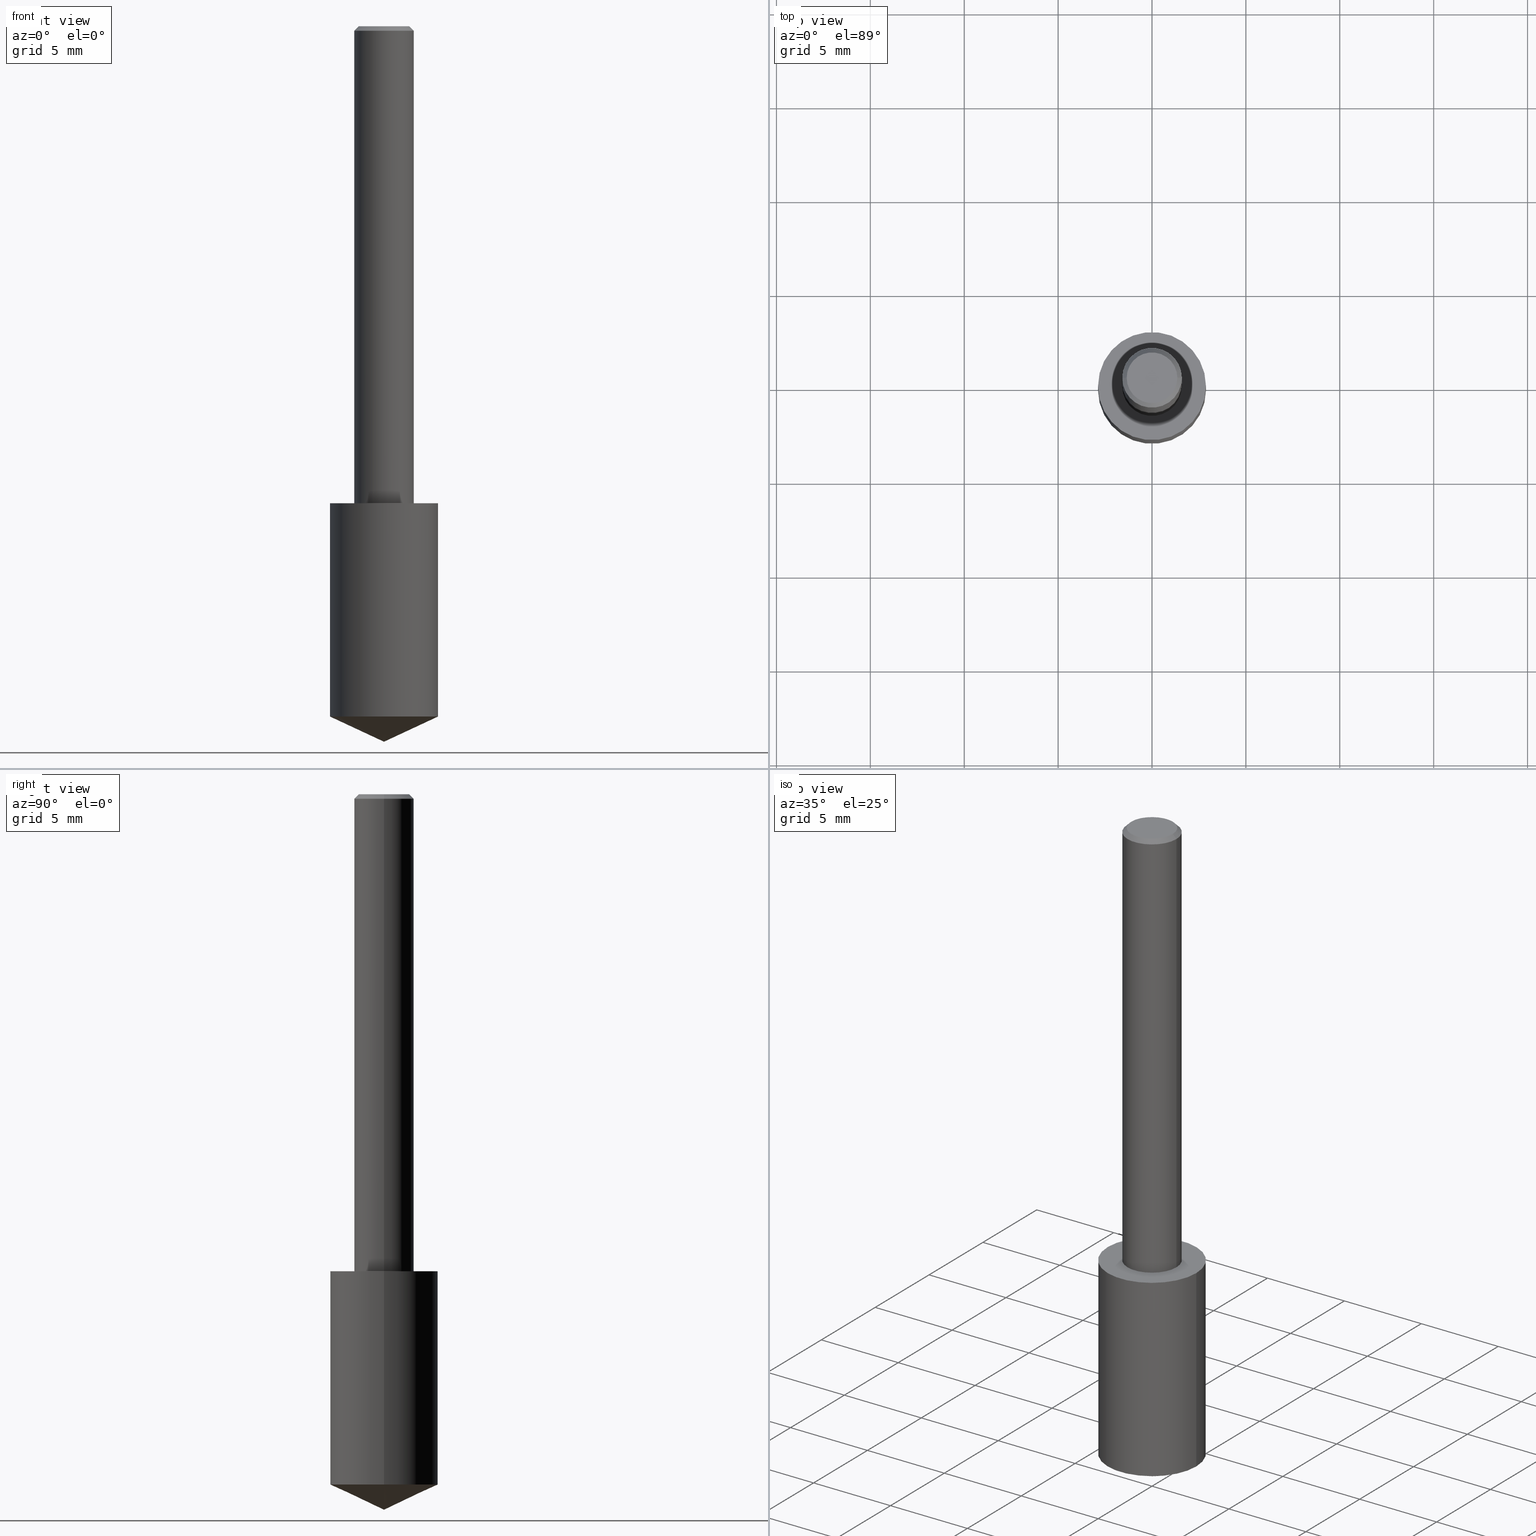
[diagram: canonical four-view strip — front | top / right | iso, engineering-drawing reading convention]
A machine part, canonical four-view strip (front | top / right | iso — engineering-drawing reading convention). The complete STEP part file that produces these views, byte-faithful:
ISO-10303-21;
HEADER;
FILE_DESCRIPTION (( 'STEP AP203' ),
    '1' );
FILE_NAME ('06155.STEP',
    '2024-04-30T18:31:46',
    ( '' ),
    ( '' ),
    'SwSTEP 2.0',
    'SolidWorks 2023',
    '' );
FILE_SCHEMA (( 'CONFIG_CONTROL_DESIGN' ));
ENDSEC;

DATA;
#1 = ORIENTED_EDGE ( 'NONE', *, *, #174, .F. ) ;
#2 = CARTESIAN_POINT ( 'NONE',  ( -0.06250000000000000000, 4.037025298037369984E-16, -0.009375000000000060368 ) ) ;
#3 = DIRECTION ( 'NONE',  ( -2.445468806185136597E-29, 3.491481338843145583E-15, 1.000000000000000000 ) ) ;
#4 = SECURITY_CLASSIFICATION ( '', '', #235 ) ;
#5 = ADVANCED_BREP_SHAPE_REPRESENTATION ( '06155', ( #157, #276, #193 ), #63 ) ;
#6 = DIRECTION ( 'NONE',  ( -2.445468806185136877E-29, 3.491481338843145188E-15, 1.000000000000000000 ) ) ;
#7 = CARTESIAN_POINT ( 'NONE',  ( -9.261009624683002666E-28, 1.322226732217803884E-13, 37.87007874015748143 ) ) ;
#8 = DIRECTION ( 'NONE',  ( -2.445468806185136597E-29, 3.491481338843145583E-15, 1.000000000000000000 ) ) ;
#9 = AXIS2_PLACEMENT_3D ( 'NONE', #190, #183, #287 ) ;
#10 = EDGE_CURVE ( 'NONE', #187, #335, #184, .T. ) ;
#11 = DIRECTION ( 'NONE',  ( -2.445468806185136877E-29, 3.491481338843145188E-15, 1.000000000000000000 ) ) ;
#12 = CARTESIAN_POINT ( 'NONE',  ( 0.000000000000000000, 0.000000000000000000, 0.000000000000000000 ) ) ;
#13 = UNCERTAINTY_MEASURE_WITH_UNIT (LENGTH_MEASURE( 1.000000000000000082E-05 ), #202, 'distance_accuracy_value', 'NONE');
#14 = CC_DESIGN_SECURITY_CLASSIFICATION ( #4, ( #169 ) ) ;
#15 = AXIS2_PLACEMENT_3D ( 'NONE', #143, #297, #191 ) ;
#16 = DIRECTION ( 'NONE',  ( 1.000000000000000000, -6.982962677686264344E-15, 0.000000000000000000 ) ) ;
#17 = CARTESIAN_POINT ( 'NONE',  ( 3.288065651629910335E-29, -2.284834698532075829E-15, -1.000000000000000222 ) ) ;
#18 = PERSON_AND_ORGANIZATION_ROLE ( 'classification_officer' ) ;
#19 = EDGE_LOOP ( 'NONE', ( #211, #1, #123, #128 ) ) ;
#20 = AXIS2_PLACEMENT_3D ( 'NONE', #141, #171, #278 ) ;
#21 = DATE_AND_TIME ( #259, #288 ) ;
#22 = ORIENTED_EDGE ( 'NONE', *, *, #86, .T. ) ;
#23 = ORIENTED_EDGE ( 'NONE', *, *, #70, .F. ) ;
#24 = APPROVAL_DATE_TIME ( #100, #25 ) ;
#25 = APPROVAL ( #75, 'UNSPECIFIED' ) ;
#26 = EDGE_LOOP ( 'NONE', ( #97, #284 ) ) ;
#27 = APPROVAL_ROLE ( '' ) ;
#28 = AXIS2_PLACEMENT_3D ( 'NONE', #216, #3, #319 ) ;
#29 = EDGE_LOOP ( 'NONE', ( #101, #215, #22, #242 ) ) ;
#30 = DIRECTION ( 'NONE',  ( -2.445468806185136597E-29, 3.491481338843145583E-15, 1.000000000000000000 ) ) ;
#31 = CARTESIAN_POINT ( 'NONE',  ( 3.668203209277704895E-29, -5.237222008264718177E-15, -1.500000000000000222 ) ) ;
#32 = CC_DESIGN_PERSON_AND_ORGANIZATION_ASSIGNMENT ( #331, #155, ( #34 ) ) ;
#33 = LINE ( 'NONE', #31, #329 ) ;
#34 = PRODUCT_DEFINITION ( 'UNKNOWN', '', #169, #228 ) ;
#35 = DIRECTION ( 'NONE',  ( 0.9063077870366507138, -4.853149677051390623E-15, 0.4226182617406978315 ) ) ;
#36 = CARTESIAN_POINT ( 'NONE',  ( 3.668203209277704895E-29, -5.237222008264718177E-15, -1.500000000000000222 ) ) ;
#37 = CARTESIAN_POINT ( 'NONE',  ( 2.445468806185137438E-29, -3.491481338843146371E-15, -1.000000000000000222 ) ) ;
#38 = CIRCLE ( 'NONE', #125, 0.1131999999999999812 ) ;
#39 = CONICAL_SURFACE ( 'NONE', #256, 84.42940631927434936, 1.134464013796316006 ) ;
#40 = CARTESIAN_POINT ( 'NONE',  ( 0.06250000000000006939, -4.364351673553921624E-16, 3.047610484872463374E-30 ) ) ;
#41 = CONICAL_SURFACE ( 'NONE', #316, 0.06250000000000000000, 0.7853981633974452814 ) ;
#42 = PERSON_AND_ORGANIZATION ( #177, #241 ) ;
#43 = VERTEX_POINT ( 'NONE', #310 ) ;
#44 = EDGE_CURVE ( 'NONE', #71, #133, #232, .T. ) ;
#45 = VERTEX_POINT ( 'NONE', #238 ) ;
#46 = AXIS2_PLACEMENT_3D ( 'NONE', #55, #317, #197 ) ;
#47 = DATE_TIME_ROLE ( 'creation_date' ) ;
#48 = CARTESIAN_POINT ( 'NONE',  ( 2.445468806185136877E-29, -3.491481338843145977E-15, -1.000000000000000222 ) ) ;
#49 = DATE_AND_TIME ( #180, #262 ) ;
#50 = ORIENTED_EDGE ( 'NONE', *, *, #44, .F. ) ;
#51 = ADVANCED_FACE ( 'NONE', ( #291 ), #74, .T. ) ;
#52 = ORIENTED_EDGE ( 'NONE', *, *, #10, .F. ) ;
#53 = CIRCLE ( 'NONE', #20, 0.05312499999999999861 ) ;
#54 = LINE ( 'NONE', #78, #135 ) ;
#55 = CARTESIAN_POINT ( 'NONE',  ( 3.539116627083612931E-29, -5.052920580380713708E-15, -1.447213973096854511 ) ) ;
#56 = CC_DESIGN_PERSON_AND_ORGANIZATION_ASSIGNMENT ( #42, #283, ( #169 ) ) ;
#57 = DIRECTION ( 'NONE',  ( -2.445468806185136597E-29, 3.491481338843145583E-15, 1.000000000000000000 ) ) ;
#58 = DIRECTION ( 'NONE',  ( -1.000000000000000000, 6.982962677686266711E-15, 0.000000000000000000 ) ) ;
#59 = EDGE_CURVE ( 'NONE', #43, #307, #33, .T. ) ;
#60 = FACE_OUTER_BOUND ( 'NONE', #26, .T. ) ;
#61 = CARTESIAN_POINT ( 'NONE',  ( 2.292627005798580623E-31, -3.273263755165470184E-17, -0.009375000000000060368 ) ) ;
#62 = ORIENTED_EDGE ( 'NONE', *, *, #10, .T. ) ;
#63 =( GEOMETRIC_REPRESENTATION_CONTEXT ( 3 ) GLOBAL_UNCERTAINTY_ASSIGNED_CONTEXT ( ( #13 ) ) GLOBAL_UNIT_ASSIGNED_CONTEXT ( ( #202, #152, #65 ) ) REPRESENTATION_CONTEXT ( 'NONE', 'WORKASPACE' ) );
#64 = CYLINDRICAL_SURFACE ( 'NONE', #126, 0.06250000000000006939 ) ;
#65 =( NAMED_UNIT ( * ) SI_UNIT ( $, .STERADIAN. ) SOLID_ANGLE_UNIT ( ) );
#66 = DIRECTION ( 'NONE',  ( -2.445468806185136877E-29, 3.491481338843145188E-15, 1.000000000000000000 ) ) ;
#67 = CIRCLE ( 'NONE', #251, 0.06250000000000000000 ) ;
#68 = EDGE_CURVE ( 'NONE', #133, #71, #38, .T. ) ;
#69 = APPLICATION_PROTOCOL_DEFINITION ( 'international standard', 'config_control_design', 1994, #131 ) ;
#70 = EDGE_CURVE ( 'NONE', #187, #209, #292, .T. ) ;
#71 = VERTEX_POINT ( 'NONE', #220 ) ;
#72 = ORIENTED_EDGE ( 'NONE', *, *, #195, .T. ) ;
#73 = CIRCLE ( 'NONE', #303, 0.05312499999999999861 ) ;
#74 = CYLINDRICAL_SURFACE ( 'NONE', #192, 0.1131999999999999812 ) ;
#75 = APPROVAL_STATUS ( 'not_yet_approved' ) ;
#76 = EDGE_LOOP ( 'NONE', ( #260, #156, #154 ) ) ;
#77 = ORIENTED_EDGE ( 'NONE', *, *, #244, .F. ) ;
#78 = CARTESIAN_POINT ( 'NONE',  ( 0.1131999999999999812, -4.281952713957231192E-15, -1.000000000000000222 ) ) ;
#79 = DIRECTION ( 'NONE',  ( 1.000000000000000000, -6.982962677686266711E-15, 0.000000000000000000 ) ) ;
#80 = FACE_OUTER_BOUND ( 'NONE', #332, .T. ) ;
#81 = CC_DESIGN_DATE_AND_TIME_ASSIGNMENT ( #96, #308, ( #4 ) ) ;
#82 = EDGE_CURVE ( 'NONE', #45, #209, #167, .T. ) ;
#83 = DIRECTION ( 'NONE',  ( -2.445468806185136877E-29, 3.491481338843145188E-15, 1.000000000000000000 ) ) ;
#84 = CIRCLE ( 'NONE', #234, 0.1131999999999999812 ) ;
#85 = FACE_OUTER_BOUND ( 'NONE', #286, .T. ) ;
#86 = EDGE_CURVE ( 'NONE', #95, #71, #54, .T. ) ;
#87 = DIRECTION ( 'NONE',  ( -2.445468806185136597E-29, 3.491481338843145583E-15, 1.000000000000000000 ) ) ;
#88 = LINE ( 'NONE', #113, #275 ) ;
#89 = APPROVAL_PERSON_ORGANIZATION ( #289, #114, #27 ) ;
#90 = CARTESIAN_POINT ( 'NONE',  ( 0.06250000000000000000, -4.615137624123753937E-16, -0.009375000000000060368 ) ) ;
#91 = CARTESIAN_POINT ( 'NONE',  ( -7.487088864773345706E-50, 1.068957861474247695E-35, 3.061616997868395197E-21 ) ) ;
#92 = APPROVAL_DATE_TIME ( #49, #114 ) ;
#93 = AXIS2_PLACEMENT_3D ( 'NONE', #17, #298, #229 ) ;
#94 = COORDINATED_UNIVERSAL_TIME_OFFSET ( 5, 0, .BEHIND. ) ;
#95 = VERTEX_POINT ( 'NONE', #109 ) ;
#96 = DATE_AND_TIME ( #231, #325 ) ;
#97 = ORIENTED_EDGE ( 'NONE', *, *, #174, .T. ) ;
#98 = MECHANICAL_CONTEXT ( 'NONE', #196, 'mechanical' ) ;
#99 = VERTEX_POINT ( 'NONE', #111 ) ;
#100 = DATE_AND_TIME ( #127, #118 ) ;
#101 = ORIENTED_EDGE ( 'NONE', *, *, #323, .F. ) ;
#102 = ORIENTED_EDGE ( 'NONE', *, *, #272, .F. ) ;
#103 = CC_DESIGN_DATE_AND_TIME_ASSIGNMENT ( #153, #47, ( #34 ) ) ;
#104 = EDGE_CURVE ( 'NONE', #327, #209, #67, .T. ) ;
#105 = DIRECTION ( 'NONE',  ( 1.000000000000000000, -6.982962677686266711E-15, 0.000000000000000000 ) ) ;
#106 = CLOSED_SHELL ( 'NONE', ( #221, #188, #198, #51, #254 ) ) ;
#107 = LOCAL_TIME ( 14, 31, 46.00000000000000000, #205 ) ;
#108 = CARTESIAN_POINT ( 'NONE',  ( 3.539116627083612931E-29, -5.052920580380713708E-15, -1.447213973096854511 ) ) ;
#109 = CARTESIAN_POINT ( 'NONE',  ( 0.1132000000000000089, -5.843391955494798923E-15, -1.447213973096854511 ) ) ;
#110 = DIRECTION ( 'NONE',  ( 1.000000000000000000, -6.982962677686269077E-15, 0.000000000000000000 ) ) ;
#111 = CARTESIAN_POINT ( 'NONE',  ( 0.05312499999999999861, -4.129888592719939842E-16, 3.061617000609493422E-21 ) ) ;
#112 = CIRCLE ( 'NONE', #46, 0.1131999999999999812 ) ;
#113 = CARTESIAN_POINT ( 'NONE',  ( -0.1131999999999999812, -2.687146961962713193E-15, -1.000000000000000222 ) ) ;
#114 = APPROVAL ( #213, 'UNSPECIFIED' ) ;
#115 = CARTESIAN_POINT ( 'NONE',  ( 2.445468806185137438E-29, -3.491481338843146371E-15, -1.000000000000000222 ) ) ;
#116 = DIRECTION ( 'NONE',  ( 2.445468806185136597E-29, -3.491481338843145583E-15, -1.000000000000000000 ) ) ;
#117 = VECTOR ( 'NONE', #250, 39.37007874015748143 ) ;
#118 = LOCAL_TIME ( 14, 31, 46.00000000000000000, #305 ) ;
#119 = FACE_OUTER_BOUND ( 'NONE', #339, .T. ) ;
#120 = EDGE_CURVE ( 'NONE', #335, #187, #222, .T. ) ;
#121 = PLANE ( 'NONE',  #206 ) ;
#122 = COORDINATED_UNIVERSAL_TIME_OFFSET ( 5, 0, .BEHIND. ) ;
#123 = ORIENTED_EDGE ( 'NONE', *, *, #82, .T. ) ;
#124 = PRODUCT ( '06155', '06155', '', ( #98 ) ) ;
#125 = AXIS2_PLACEMENT_3D ( 'NONE', #243, #57, #168 ) ;
#126 = AXIS2_PLACEMENT_3D ( 'NONE', #326, #175, #255 ) ;
#127 = CALENDAR_DATE ( 2024, 30, 4 ) ;
#128 = ORIENTED_EDGE ( 'NONE', *, *, #142, .T. ) ;
#129 = PERSON_AND_ORGANIZATION ( #177, #241 ) ;
#130 = DIRECTION ( 'NONE',  ( -2.445468806185136597E-29, 3.491481338843145583E-15, 1.000000000000000000 ) ) ;
#131 = APPLICATION_CONTEXT ( 'configuration controlled 3d designs of mechanical parts and assemblies' ) ;
#132 = PERSON_AND_ORGANIZATION_ROLE ( 'creator' ) ;
#133 = VERTEX_POINT ( 'NONE', #296 ) ;
#134 = CLOSED_SHELL ( 'NONE', ( #145, #249, #212, #163, #258, #150 ) ) ;
#135 = VECTOR ( 'NONE', #83, 39.37007874015748143 ) ;
#136 = EDGE_LOOP ( 'NONE', ( #23, #62, #225, #299 ) ) ;
#137 = FACE_OUTER_BOUND ( 'NONE', #76, .T. ) ;
#138 = CARTESIAN_POINT ( 'NONE',  ( 2.292627005798580623E-31, -3.273263755165470184E-17, -0.009375000000000060368 ) ) ;
#139 = VECTOR ( 'NONE', #178, 39.37007874015748143 ) ;
#140 = CARTESIAN_POINT ( 'NONE',  ( 2.292627005798580623E-31, -3.273263755165470184E-17, -0.009375000000000060368 ) ) ;
#141 = CARTESIAN_POINT ( 'NONE',  ( -7.487088864773345706E-50, 1.068957861474247695E-35, 3.061616997868395197E-21 ) ) ;
#142 = EDGE_CURVE ( 'NONE', #209, #327, #338, .T. ) ;
#143 = CARTESIAN_POINT ( 'NONE',  ( -3.743544432386672853E-50, 5.344789307371238476E-36, 1.530808498934197599E-21 ) ) ;
#144 = FACE_OUTER_BOUND ( 'NONE', #19, .T. ) ;
#145 = ADVANCED_FACE ( 'NONE', ( #80 ), #279, .T. ) ;
#146 = CARTESIAN_POINT ( 'NONE',  ( -0.06250000000000000000, -1.318017778347336672E-15, -0.009375000000000060368 ) ) ;
#147 = FACE_OUTER_BOUND ( 'NONE', #236, .T. ) ;
#148 = APPROVAL ( #160, 'UNSPECIFIED' ) ;
#149 = CC_DESIGN_PERSON_AND_ORGANIZATION_ASSIGNMENT ( #210, #18, ( #4 ) ) ;
#150 = ADVANCED_FACE ( 'NONE', ( #60 ), #166, .F. ) ;
#151 = APPLICATION_PROTOCOL_DEFINITION ( 'international standard', 'config_control_design', 1994, #196 ) ;
#152 =( NAMED_UNIT ( * ) PLANE_ANGLE_UNIT ( ) SI_UNIT ( $, .RADIAN. ) );
#153 = DATE_AND_TIME ( #304, #107 ) ;
#154 = ORIENTED_EDGE ( 'NONE', *, *, #195, .F. ) ;
#155 = PERSON_AND_ORGANIZATION_ROLE ( 'creator' ) ;
#156 = ORIENTED_EDGE ( 'NONE', *, *, #59, .T. ) ;
#157 = MANIFOLD_SOLID_BREP ( 'Body-Move/Copy2[1]', #106 ) ;
#158 = CC_DESIGN_APPROVAL ( #148, ( #169 ) ) ;
#159 = EDGE_LOOP ( 'NONE', ( #72, #334, #50, #314 ) ) ;
#160 = APPROVAL_STATUS ( 'not_yet_approved' ) ;
#161 = ORIENTED_EDGE ( 'NONE', *, *, #173, .F. ) ;
#162 = APPROVAL_DATE_TIME ( #21, #148 ) ;
#163 = ADVANCED_FACE ( 'NONE', ( #245 ), #270, .T. ) ;
#164 = ORIENTED_EDGE ( 'NONE', *, *, #70, .T. ) ;
#165 = AXIS2_PLACEMENT_3D ( 'NONE', #321, #201, #105 ) ;
#166 = PLANE ( 'NONE',  #15 ) ;
#167 = LINE ( 'NONE', #2, #117 ) ;
#168 = DIRECTION ( 'NONE',  ( 1.000000000000000000, -6.982962677686269077E-15, 0.000000000000000000 ) ) ;
#169 = PRODUCT_DEFINITION_FORMATION_WITH_SPECIFIED_SOURCE ( 'ANY', '', #124, .NOT_KNOWN. ) ;
#170 = LINE ( 'NONE', #36, #268 ) ;
#171 = DIRECTION ( 'NONE',  ( -2.445468806185136597E-29, 3.491481338843145583E-15, 1.000000000000000000 ) ) ;
#172 = LINE ( 'NONE', #90, #139 ) ;
#173 = EDGE_CURVE ( 'NONE', #307, #95, #84, .T. ) ;
#174 = EDGE_CURVE ( 'NONE', #45, #99, #53, .T. ) ;
#175 = DIRECTION ( 'NONE',  ( -2.445468806185136597E-29, 3.491481338843145583E-15, 1.000000000000000000 ) ) ;
#176 = CC_DESIGN_APPROVAL ( #114, ( #34 ) ) ;
#177 = PERSON ( 'UNSPECIFIED', 'UNSPECIFIED', 'UNSPECIFIED', ('UNSPECIFIED'), ('UNSPECIFIED'), ('UNSPECIFIED') ) ;
#178 = DIRECTION ( 'NONE',  ( 0.7071067811865453523, -7.319954787623248157E-15, -0.7071067811865496822 ) ) ;
#179 = AXIS2_PLACEMENT_3D ( 'NONE', #219, #318, #273 ) ;
#180 = CALENDAR_DATE ( 2024, 30, 4 ) ;
#181 = ORIENTED_EDGE ( 'NONE', *, *, #44, .T. ) ;
#182 = EDGE_CURVE ( 'NONE', #43, #95, #170, .T. ) ;
#183 = DIRECTION ( 'NONE',  ( -2.445468806185136597E-29, 3.491481338843145583E-15, 1.000000000000000000 ) ) ;
#184 = CIRCLE ( 'NONE', #9, 0.06250000000000012490 ) ;
#185 = APPROVAL_PERSON_ORGANIZATION ( #337, #25, #207 ) ;
#186 = APPROVAL_ROLE ( '' ) ;
#187 = VERTEX_POINT ( 'NONE', #218 ) ;
#188 = ADVANCED_FACE ( 'NONE', ( #137 ), #330, .T. ) ;
#189 = SHAPE_DEFINITION_REPRESENTATION ( #237, #5 ) ;
#190 = CARTESIAN_POINT ( 'NONE',  ( 2.445468806185137438E-29, -3.491481338843146371E-15, -1.000000000000000222 ) ) ;
#191 = DIRECTION ( 'NONE',  ( -1.000000000000000000, 6.982962677686265922E-15, -4.876176775795935793E-29 ) ) ;
#192 = AXIS2_PLACEMENT_3D ( 'NONE', #277, #8, #247 ) ;
#193 = AXIS2_PLACEMENT_3D ( 'NONE', #12, #263, #333 ) ;
#194 = DIRECTION ( 'NONE',  ( -2.445468806185136597E-29, 3.491481338843145583E-15, 1.000000000000000000 ) ) ;
#195 = EDGE_CURVE ( 'NONE', #95, #307, #112, .T. ) ;
#196 = APPLICATION_CONTEXT ( 'configuration controlled 3d designs of mechanical parts and assemblies' ) ;
#197 = DIRECTION ( 'NONE',  ( 1.000000000000000000, -6.982962677686269077E-15, 0.000000000000000000 ) ) ;
#198 = ADVANCED_FACE ( 'NONE', ( #248 ), #39, .T. ) ;
#199 = DIRECTION ( 'NONE',  ( 2.445468806185136597E-29, -3.491481338843145583E-15, -1.000000000000000000 ) ) ;
#200 = AXIS2_PLACEMENT_3D ( 'NONE', #115, #87, #16 ) ;
#201 = DIRECTION ( 'NONE',  ( -2.445468806185136597E-29, 3.491481338843145583E-15, 1.000000000000000000 ) ) ;
#202 =( CONVERSION_BASED_UNIT ( 'INCH', #322 ) LENGTH_UNIT ( ) NAMED_UNIT ( #203 ) );
#203 = DIMENSIONAL_EXPONENTS ( 1.000000000000000000, 0.000000000000000000, 0.000000000000000000, 0.000000000000000000, 0.000000000000000000, 0.000000000000000000, 0.000000000000000000 ) ;
#204 = DIRECTION ( 'NONE',  ( -1.000000000000000000, 6.982962677686266711E-15, 0.000000000000000000 ) ) ;
#205 = COORDINATED_UNIVERSAL_TIME_OFFSET ( 5, 0, .BEHIND. ) ;
#206 = AXIS2_PLACEMENT_3D ( 'NONE', #37, #282, #324 ) ;
#207 = APPROVAL_ROLE ( '' ) ;
#208 = ORIENTED_EDGE ( 'NONE', *, *, #104, .T. ) ;
#209 = VERTEX_POINT ( 'NONE', #146 ) ;
#210 = PERSON_AND_ORGANIZATION ( #177, #241 ) ;
#211 = ORIENTED_EDGE ( 'NONE', *, *, #271, .F. ) ;
#212 = ADVANCED_FACE ( 'NONE', ( #147 ), #121, .F. ) ;
#213 = APPROVAL_STATUS ( 'not_yet_approved' ) ;
#214 = ORIENTED_EDGE ( 'NONE', *, *, #120, .F. ) ;
#215 = ORIENTED_EDGE ( 'NONE', *, *, #173, .T. ) ;
#216 = CARTESIAN_POINT ( 'NONE',  ( 0.000000000000000000, 0.000000000000000000, 0.000000000000000000 ) ) ;
#217 = VECTOR ( 'NONE', #11, 39.37007874015748143 ) ;
#218 = CARTESIAN_POINT ( 'NONE',  ( -0.06250000000000012490, -1.318017778347335489E-15, -1.000000000000000222 ) ) ;
#219 = CARTESIAN_POINT ( 'NONE',  ( 2.445468806185137438E-29, -3.491481338843146371E-15, -1.000000000000000222 ) ) ;
#220 = CARTESIAN_POINT ( 'NONE',  ( 0.1131999999999999812, -4.281952713957231192E-15, -1.000000000000000222 ) ) ;
#221 = ADVANCED_FACE ( 'NONE', ( #226 ), #328, .T. ) ;
#222 = CIRCLE ( 'NONE', #179, 0.06250000000000012490 ) ;
#223 = DIRECTION ( 'NONE',  ( -2.445468806185136597E-29, 3.491481338843145583E-15, 1.000000000000000000 ) ) ;
#224 = CARTESIAN_POINT ( 'NONE',  ( 0.06250000000000000000, -4.691678049070463404E-16, -0.009375000000000060368 ) ) ;
#225 = ORIENTED_EDGE ( 'NONE', *, *, #272, .T. ) ;
#226 = FACE_OUTER_BOUND ( 'NONE', #159, .T. ) ;
#227 = AXIS2_PLACEMENT_3D ( 'NONE', #315, #194, #294 ) ;
#228 = DESIGN_CONTEXT ( 'detailed design', #131, 'design' ) ;
#229 = DIRECTION ( 'NONE',  ( -1.000000000000000000, 6.982962677686265922E-15, -4.876176775795935793E-29 ) ) ;
#230 = DIRECTION ( 'NONE',  ( -2.445468806185136597E-29, 3.491481338843145583E-15, 1.000000000000000000 ) ) ;
#231 = CALENDAR_DATE ( 2024, 30, 4 ) ;
#232 = CIRCLE ( 'NONE', #293, 0.1131999999999999812 ) ;
#233 = ORIENTED_EDGE ( 'NONE', *, *, #68, .T. ) ;
#234 = AXIS2_PLACEMENT_3D ( 'NONE', #108, #30, #110 ) ;
#235 = SECURITY_CLASSIFICATION_LEVEL ( 'unclassified' ) ;
#236 = EDGE_LOOP ( 'NONE', ( #214, #52 ) ) ;
#237 = PRODUCT_DEFINITION_SHAPE ( 'NONE', 'NONE',  #34 ) ;
#238 = CARTESIAN_POINT ( 'NONE',  ( -0.05312499999999999861, 3.873362110279099094E-16, 3.061616995216862494E-21 ) ) ;
#239 = PERSON_AND_ORGANIZATION ( #177, #241 ) ;
#240 = ORIENTED_EDGE ( 'NONE', *, *, #82, .F. ) ;
#241 = ORGANIZATION ( 'UNSPECIFIED', 'UNSPECIFIED', '' ) ;
#242 = ORIENTED_EDGE ( 'NONE', *, *, #68, .F. ) ;
#243 = CARTESIAN_POINT ( 'NONE',  ( 2.445468806185136877E-29, -3.491481338843145977E-15, -1.000000000000000222 ) ) ;
#244 = EDGE_CURVE ( 'NONE', #99, #45, #73, .T. ) ;
#245 = FACE_OUTER_BOUND ( 'NONE', #136, .T. ) ;
#246 = APPROVAL_PERSON_ORGANIZATION ( #239, #148, #186 ) ;
#247 = DIRECTION ( 'NONE',  ( 1.000000000000000000, -6.982962677686264344E-15, 0.000000000000000000 ) ) ;
#248 = FACE_OUTER_BOUND ( 'NONE', #306, .T. ) ;
#249 = ADVANCED_FACE ( 'NONE', ( #85 ), #64, .T. ) ;
#250 = DIRECTION ( 'NONE',  ( -0.7071067811865453523, 2.468850131082234184E-15, -0.7071067811865496822 ) ) ;
#251 = AXIS2_PLACEMENT_3D ( 'NONE', #140, #223, #79 ) ;
#252 = PLANE ( 'NONE',  #93 ) ;
#253 = DIRECTION ( 'NONE',  ( 1.000000000000000000, -6.982962677686266711E-15, 4.876176628004948512E-29 ) ) ;
#254 = ADVANCED_FACE ( 'NONE', ( #119 ), #252, .F. ) ;
#255 = DIRECTION ( 'NONE',  ( 1.000000000000000000, -6.982962677686266711E-15, 4.876176775795935793E-29 ) ) ;
#256 = AXIS2_PLACEMENT_3D ( 'NONE', #7, #257, #300 ) ;
#257 = DIRECTION ( 'NONE',  ( -2.445468806185136597E-29, 3.491481338843145583E-15, 1.000000000000000000 ) ) ;
#258 = ADVANCED_FACE ( 'NONE', ( #144 ), #41, .T. ) ;
#259 = CALENDAR_DATE ( 2024, 30, 4 ) ;
#260 = ORIENTED_EDGE ( 'NONE', *, *, #182, .F. ) ;
#261 = ORIENTED_EDGE ( 'NONE', *, *, #104, .F. ) ;
#262 = LOCAL_TIME ( 14, 31, 46.00000000000000000, #312 ) ;
#263 = DIRECTION ( 'NONE',  ( 0.000000000000000000, 0.000000000000000000, 1.000000000000000000 ) ) ;
#264 = DIRECTION ( 'NONE',  ( 1.000000000000000000, -6.982962677686269077E-15, 0.000000000000000000 ) ) ;
#265 = PERSON_AND_ORGANIZATION ( #177, #241 ) ;
#266 = ORIENTED_EDGE ( 'NONE', *, *, #182, .T. ) ;
#267 = ORIENTED_EDGE ( 'NONE', *, *, #120, .T. ) ;
#268 = VECTOR ( 'NONE', #35, 39.37007874015748143 ) ;
#269 = CC_DESIGN_PERSON_AND_ORGANIZATION_ASSIGNMENT ( #265, #132, ( #169 ) ) ;
#270 = CYLINDRICAL_SURFACE ( 'NONE', #28, 0.06250000000000006939 ) ;
#271 = EDGE_CURVE ( 'NONE', #99, #327, #172, .T. ) ;
#272 = EDGE_CURVE ( 'NONE', #335, #327, #302, .T. ) ;
#273 = DIRECTION ( 'NONE',  ( 1.000000000000000000, -6.982962677686264344E-15, 0.000000000000000000 ) ) ;
#274 = CARTESIAN_POINT ( 'NONE',  ( -0.06250000000000006939, 4.440892098500631092E-16, -3.074334431409319267E-30 ) ) ;
#275 = VECTOR ( 'NONE', #66, 39.37007874015748143 ) ;
#276 = MANIFOLD_SOLID_BREP ( 'Body-Move/Copy2[2]', #134 ) ;
#277 = CARTESIAN_POINT ( 'NONE',  ( 2.445468806185137438E-29, -3.491481338843146371E-15, -1.000000000000000222 ) ) ;
#278 = DIRECTION ( 'NONE',  ( 1.000000000000000000, -6.982962677686266711E-15, 4.876176628004948512E-29 ) ) ;
#279 = CONICAL_SURFACE ( 'NONE', #320, 0.06250000000000000000, 0.7853981633974452814 ) ;
#280 = CARTESIAN_POINT ( 'NONE',  ( 0.06250000000000012490, -3.927916506198539224E-15, -1.000000000000000222 ) ) ;
#281 = CARTESIAN_POINT ( 'NONE',  ( -0.1132000000000000089, -4.248586203500279741E-15, -1.447213973096854511 ) ) ;
#282 = DIRECTION ( 'NONE',  ( -2.438088387897960049E-29, 3.491481338843145188E-15, 1.000000000000000000 ) ) ;
#283 = PERSON_AND_ORGANIZATION_ROLE ( 'design_supplier' ) ;
#284 = ORIENTED_EDGE ( 'NONE', *, *, #244, .T. ) ;
#285 = PERSON_AND_ORGANIZATION_ROLE ( 'design_owner' ) ;
#286 = EDGE_LOOP ( 'NONE', ( #267, #164, #261, #102 ) ) ;
#287 = DIRECTION ( 'NONE',  ( 1.000000000000000000, -6.982962677686264344E-15, 0.000000000000000000 ) ) ;
#288 = LOCAL_TIME ( 14, 31, 46.00000000000000000, #94 ) ;
#289 = PERSON_AND_ORGANIZATION ( #177, #241 ) ;
#290 = ORIENTED_EDGE ( 'NONE', *, *, #271, .T. ) ;
#291 = FACE_OUTER_BOUND ( 'NONE', #29, .T. ) ;
#292 = LINE ( 'NONE', #274, #309 ) ;
#293 = AXIS2_PLACEMENT_3D ( 'NONE', #48, #130, #264 ) ;
#294 = DIRECTION ( 'NONE',  ( 1.000000000000000000, -6.982962677686266711E-15, 0.000000000000000000 ) ) ;
#295 = DIRECTION ( 'NONE',  ( -0.9063077870366507138, 7.915267918739014631E-15, 0.4226182617406978315 ) ) ;
#296 = CARTESIAN_POINT ( 'NONE',  ( -0.1131999999999999812, -3.467866582731496664E-15, -1.000000000000000222 ) ) ;
#297 = DIRECTION ( 'NONE',  ( 2.438088387897960049E-29, -3.491481338843145188E-15, -1.000000000000000000 ) ) ;
#298 = DIRECTION ( 'NONE',  ( 2.438088387897960049E-29, -3.491481338843145188E-15, -1.000000000000000000 ) ) ;
#299 = ORIENTED_EDGE ( 'NONE', *, *, #142, .F. ) ;
#300 = DIRECTION ( 'NONE',  ( 1.000000000000000000, -6.982962677686266711E-15, 0.000000000000000000 ) ) ;
#301 =( LENGTH_UNIT ( ) NAMED_UNIT ( * ) SI_UNIT ( $, .METRE. ) );
#302 = LINE ( 'NONE', #40, #217 ) ;
#303 = AXIS2_PLACEMENT_3D ( 'NONE', #91, #230, #253 ) ;
#304 = CALENDAR_DATE ( 2024, 30, 4 ) ;
#305 = COORDINATED_UNIVERSAL_TIME_OFFSET ( 5, 0, .BEHIND. ) ;
#306 = EDGE_LOOP ( 'NONE', ( #313, #266, #161 ) ) ;
#307 = VERTEX_POINT ( 'NONE', #281 ) ;
#308 = DATE_TIME_ROLE ( 'classification_date' ) ;
#309 = VECTOR ( 'NONE', #6, 39.37007874015748143 ) ;
#310 = CARTESIAN_POINT ( 'NONE',  ( 3.668203209277704895E-29, -5.237222008264718177E-15, -1.500000000000000222 ) ) ;
#311 = CC_DESIGN_APPROVAL ( #25, ( #4 ) ) ;
#312 = COORDINATED_UNIVERSAL_TIME_OFFSET ( 5, 0, .BEHIND. ) ;
#313 = ORIENTED_EDGE ( 'NONE', *, *, #59, .F. ) ;
#314 = ORIENTED_EDGE ( 'NONE', *, *, #86, .F. ) ;
#315 = CARTESIAN_POINT ( 'NONE',  ( -9.261009624683002666E-28, 1.322226732217803884E-13, 37.87007874015748143 ) ) ;
#316 = AXIS2_PLACEMENT_3D ( 'NONE', #61, #116, #204 ) ;
#317 = DIRECTION ( 'NONE',  ( -2.445468806185136597E-29, 3.491481338843145583E-15, 1.000000000000000000 ) ) ;
#318 = DIRECTION ( 'NONE',  ( -2.445468806185136597E-29, 3.491481338843145583E-15, 1.000000000000000000 ) ) ;
#319 = DIRECTION ( 'NONE',  ( 1.000000000000000000, -6.982962677686266711E-15, 4.876176775795935793E-29 ) ) ;
#320 = AXIS2_PLACEMENT_3D ( 'NONE', #138, #199, #58 ) ;
#321 = CARTESIAN_POINT ( 'NONE',  ( 2.292627005798580623E-31, -3.273263755165470184E-17, -0.009375000000000060368 ) ) ;
#322 = LENGTH_MEASURE_WITH_UNIT ( LENGTH_MEASURE( 0.02539999999999999897 ), #301 );
#323 = EDGE_CURVE ( 'NONE', #307, #133, #88, .T. ) ;
#324 = DIRECTION ( 'NONE',  ( 1.000000000000000000, -6.982962677686265922E-15, 4.876176775795935793E-29 ) ) ;
#325 = LOCAL_TIME ( 14, 31, 46.00000000000000000, #122 ) ;
#326 = CARTESIAN_POINT ( 'NONE',  ( 0.000000000000000000, 0.000000000000000000, 0.000000000000000000 ) ) ;
#327 = VERTEX_POINT ( 'NONE', #224 ) ;
#328 = CYLINDRICAL_SURFACE ( 'NONE', #200, 0.1131999999999999812 ) ;
#329 = VECTOR ( 'NONE', #295, 39.37007874015748143 ) ;
#330 = CONICAL_SURFACE ( 'NONE', #227, 84.42940631927434936, 1.134464013796316006 ) ;
#331 = PERSON_AND_ORGANIZATION ( #177, #241 ) ;
#332 = EDGE_LOOP ( 'NONE', ( #77, #290, #208, #240 ) ) ;
#333 = DIRECTION ( 'NONE',  ( 1.000000000000000000, 0.000000000000000000, 0.000000000000000000 ) ) ;
#334 = ORIENTED_EDGE ( 'NONE', *, *, #323, .T. ) ;
#335 = VERTEX_POINT ( 'NONE', #280 ) ;
#336 = CC_DESIGN_PERSON_AND_ORGANIZATION_ASSIGNMENT ( #129, #285, ( #124 ) ) ;
#337 = PERSON_AND_ORGANIZATION ( #177, #241 ) ;
#338 = CIRCLE ( 'NONE', #165, 0.06250000000000000000 ) ;
#339 = EDGE_LOOP ( 'NONE', ( #181, #233 ) ) ;
#340 = PRODUCT_RELATED_PRODUCT_CATEGORY ( 'detail', '', ( #124 ) ) ;
ENDSEC;
END-ISO-10303-21;
